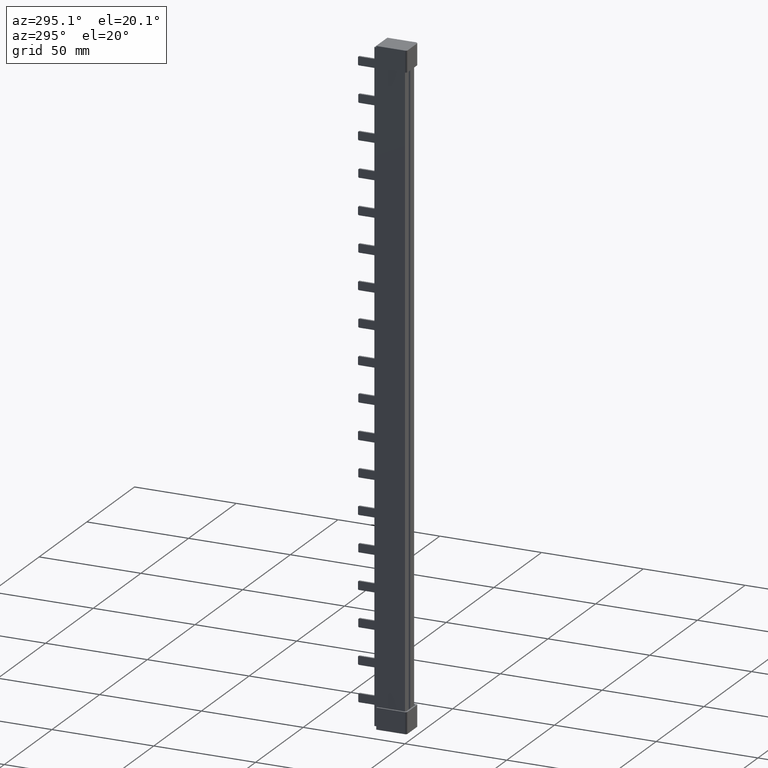
[diagram: clean part render]
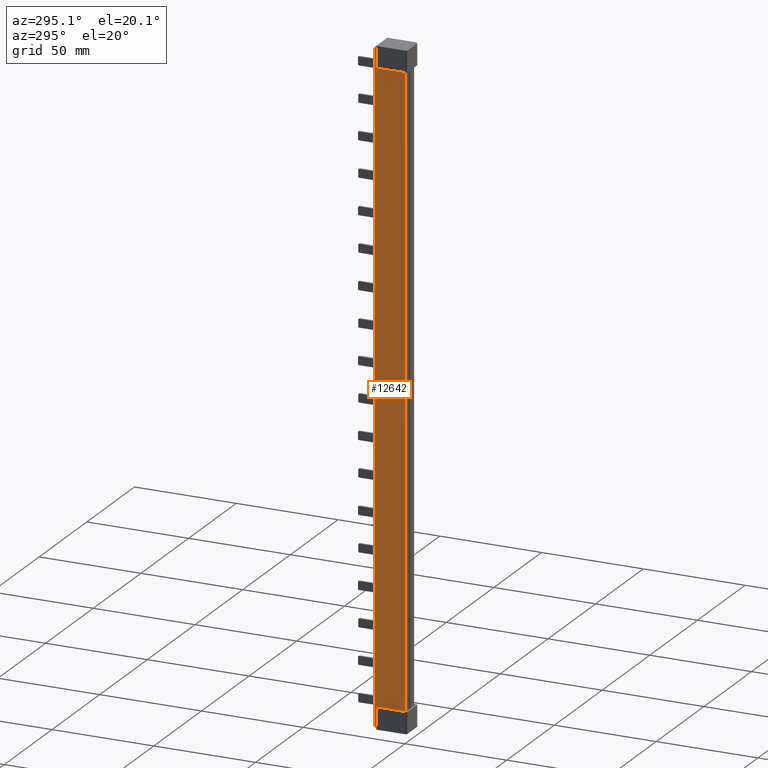
[diagram: same view with one face highlighted and labeled with its STEP entity id]
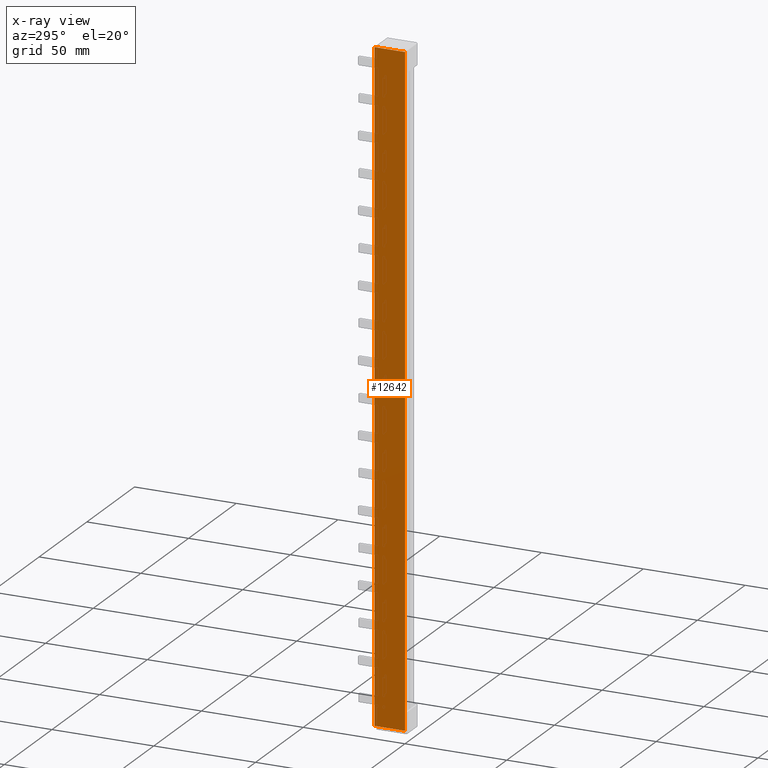
[diagram: x-ray of the same camera — body ghosted, the highlighted face saturated]
A machine part, auxiliary view. The second image highlights one B-rep face of the part: STEP entity #12642.
The next image is the same camera in x-ray: the body ghosted, the highlighted face saturated — about 0% of this face is hidden behind the body in this view.
In plain terms, the highlighted planar face has unit normal (1, -0, 0).
Its self-contained STEP definition (entity closure, byte-faithful):
#615 = CARTESIAN_POINT ( 'NONE',  ( 0.0000000000000000000, 13.60000000000009400, -103.8000000000001500 ) ) ;
#1489 = CARTESIAN_POINT ( 'NONE',  ( 0.0000000000000000000, 14.99999999999998600, -103.7999999999999800 ) ) ;
#1510 = DIRECTION ( 'NONE',  ( 0.0000000000000000000, -1.000000000000000000, -0.0000000000000000000 ) ) ;
#1558 = LINE ( 'NONE', #1489, #17287 ) ;
#1589 = CARTESIAN_POINT ( 'NONE',  ( 1.084202172723028100E-016, 0.004233506400795734000, -103.7999684908509600 ) ) ;
#1604 = CARTESIAN_POINT ( 'NONE',  ( 8.636483455477334600E-014, 0.01270166547495054500, -103.8000000000000300 ) ) ;
#1615 = CARTESIAN_POINT ( 'NONE',  ( 1.034266530926254600E-011, -1.627658511443863500E-014, -103.7999030758330300 ) ) ;
#1640 = CARTESIAN_POINT ( 'NONE',  ( 2.846030703122274700E-016, 0.008467653716560547300, -103.8000000000000300 ) ) ;
#1679 = LINE ( 'NONE', #1746, #17316 ) ;
#1746 = CARTESIAN_POINT ( 'NONE',  ( 0.0000000000000000000, 14.99999999999998600, 217.8000000000000100 ) ) ;
#1753 = DIRECTION ( 'NONE',  ( -0.0000000000000000000, -1.000000000000000000, -0.0000000000000000000 ) ) ;
#1767 = CARTESIAN_POINT ( 'NONE',  ( 3.934960648695569700E-027, 0.008467653985972004000, 217.7999999999999500 ) ) ;
#1776 = LINE ( 'NONE', #1851, #17331 ) ;
#1782 = CARTESIAN_POINT ( 'NONE',  ( 3.023004604626514300E-027, -2.930056371142075700E-014, 217.7999030758262800 ) ) ;
#1815 = DIRECTION ( 'NONE',  ( 0.0000000000000000000, 1.000000000000000000, 0.0000000000000000000 ) ) ;
#1824 = CARTESIAN_POINT ( 'NONE',  ( 3.252606517516973600E-016, 0.004233506535454665600, 217.7999684908489500 ) ) ;
#1836 = CARTESIAN_POINT ( 'NONE',  ( -1.301042606966865300E-016, 0.01270166587910146800, 217.7999999999999800 ) ) ;
#1851 = CARTESIAN_POINT ( 'NONE',  ( 0.0000000000000000000, 14.99999999999998600, -103.8000000000000300 ) ) ;
#2152 = CARTESIAN_POINT ( 'NONE',  ( 0.0000000000000000000, 14.99999999999998600, 220.2000000000000500 ) ) ;
#2196 = LINE ( 'NONE', #2152, #17347 ) ;
#2197 = DIRECTION ( 'NONE',  ( -0.0000000000000000000, -0.0000000000000000000, 1.000000000000000000 ) ) ;
#2422 = CARTESIAN_POINT ( 'NONE',  ( 0.0000000000000000000, 14.99999999999998600, 217.7999999999999800 ) ) ;
#2424 = DIRECTION ( 'NONE',  ( 0.0000000000000000000, -1.000000000000000000, -0.0000000000000000000 ) ) ;
#2438 = LINE ( 'NONE', #2453, #17374 ) ;
#2439 = DIRECTION ( 'NONE',  ( 0.0000000000000000000, 0.0000000000000000000, -1.000000000000000000 ) ) ;
#2446 = LINE ( 'NONE', #2422, #17406 ) ;
#2453 = CARTESIAN_POINT ( 'NONE',  ( 0.0000000000000000000, -3.295974604355933500E-014, 220.2000000000000500 ) ) ;
#5490 = PLANE ( 'NONE',  #10317 ) ;
#5514 = CARTESIAN_POINT ( 'NONE',  ( 0.0000000000000000000, 14.99999999999998600, 220.2000000000000500 ) ) ;
#5518 = DIRECTION ( 'NONE',  ( 1.000000000000000000, -0.0000000000000000000, 0.0000000000000000000 ) ) ;
#5528 = FACE_OUTER_BOUND ( 'NONE', #22830, .T. ) ;
#5585 = DIRECTION ( 'NONE',  ( 0.0000000000000000000, 0.0000000000000000000, -1.000000000000000000 ) ) ;
#10317 = AXIS2_PLACEMENT_3D ( 'NONE', #5514, #5518, #5585 ) ;
#10413 = B_SPLINE_CURVE_WITH_KNOTS ( 'NONE', 3,
 ( #1604, #1640, #1589, #1615 ),
 .UNSPECIFIED., .F., .F.,
 ( 4, 4 ),
 ( 0.0000000000000000000, 1.270203527518762200E-005 ),
 .UNSPECIFIED. ) ;
#10420 = B_SPLINE_CURVE_WITH_KNOTS ( 'NONE', 3,
 ( #1782, #1824, #1767, #1836 ),
 .UNSPECIFIED., .F., .F.,
 ( 4, 4 ),
 ( 2.708455307283940200E-018, 1.270203567938842200E-005 ),
 .UNSPECIFIED. ) ;
#12642 = ADVANCED_FACE ( 'NONE', ( #5528 ), #5490, .F. ) ;
#14224 = ORIENTED_EDGE ( 'NONE', *, *, #28088, .F. ) ;
#14228 = ORIENTED_EDGE ( 'NONE', *, *, #28086, .F. ) ;
#14229 = ORIENTED_EDGE ( 'NONE', *, *, #27971, .T. ) ;
#14232 = ORIENTED_EDGE ( 'NONE', *, *, #28027, .F. ) ;
#17287 = VECTOR ( 'NONE', #1510, 1000.000000000000000 ) ;
#17316 = VECTOR ( 'NONE', #1753, 1000.000000000000000 ) ;
#17331 = VECTOR ( 'NONE', #1815, 1000.000000000000000 ) ;
#17347 = VECTOR ( 'NONE', #2197, 1000.000000000000000 ) ;
#17374 = VECTOR ( 'NONE', #2439, 1000.000000000000000 ) ;
#17406 = VECTOR ( 'NONE', #2424, 1000.000000000000000 ) ;
#20779 = VERTEX_POINT ( 'NONE', #30565 ) ;
#21039 = VERTEX_POINT ( 'NONE', #30881 ) ;
#21532 = VERTEX_POINT ( 'NONE', #29931 ) ;
#21536 = VERTEX_POINT ( 'NONE', #29980 ) ;
#21537 = VERTEX_POINT ( 'NONE', #29936 ) ;
#21541 = VERTEX_POINT ( 'NONE', #29954 ) ;
#21549 = VERTEX_POINT ( 'NONE', #29959 ) ;
#21570 = VERTEX_POINT ( 'NONE', #615 ) ;
#22830 = EDGE_LOOP ( 'NONE', ( #14232, #14229, #28577, #28542, #14224, #28584, #28538, #14228 ) ) ;
#27971 = EDGE_CURVE ( 'NONE', #20779, #21570, #1558, .T. ) ;
#27985 = EDGE_CURVE ( 'NONE', #21541, #21532, #10413, .T. ) ;
#28005 = EDGE_CURVE ( 'NONE', #21536, #21549, #1679, .T. ) ;
#28009 = EDGE_CURVE ( 'NONE', #21541, #21570, #1776, .T. ) ;
#28015 = EDGE_CURVE ( 'NONE', #21537, #21549, #10420, .T. ) ;
#28027 = EDGE_CURVE ( 'NONE', #20779, #21039, #2196, .T. ) ;
#28086 = EDGE_CURVE ( 'NONE', #21039, #21536, #2446, .T. ) ;
#28088 = EDGE_CURVE ( 'NONE', #21537, #21532, #2438, .T. ) ;
#28538 = ORIENTED_EDGE ( 'NONE', *, *, #28005, .F. ) ;
#28542 = ORIENTED_EDGE ( 'NONE', *, *, #27985, .T. ) ;
#28577 = ORIENTED_EDGE ( 'NONE', *, *, #28009, .F. ) ;
#28584 = ORIENTED_EDGE ( 'NONE', *, *, #28015, .T. ) ;
#29931 = CARTESIAN_POINT ( 'NONE',  ( 1.034266530926254600E-011, -1.627658511443863500E-014, -103.7999030758330300 ) ) ;
#29936 = CARTESIAN_POINT ( 'NONE',  ( 3.023004604626514300E-027, -2.930056371142075700E-014, 217.7999030758262800 ) ) ;
#29954 = CARTESIAN_POINT ( 'NONE',  ( 8.636483455477334600E-014, 0.01270166547495054500, -103.8000000000000300 ) ) ;
#29959 = CARTESIAN_POINT ( 'NONE',  ( -1.301042606966865300E-016, 0.01270166587910146800, 217.7999999999999800 ) ) ;
#29980 = CARTESIAN_POINT ( 'NONE',  ( 0.0000000000000000000, 13.60000000000009400, 217.7999999999999800 ) ) ;
#30565 = CARTESIAN_POINT ( 'NONE',  ( 0.0000000000000000000, 14.99999999999998600, -103.8000000000000000 ) ) ;
#30881 = CARTESIAN_POINT ( 'NONE',  ( 0.0000000000000000000, 14.99999999999998600, 217.7999999999999800 ) ) ;